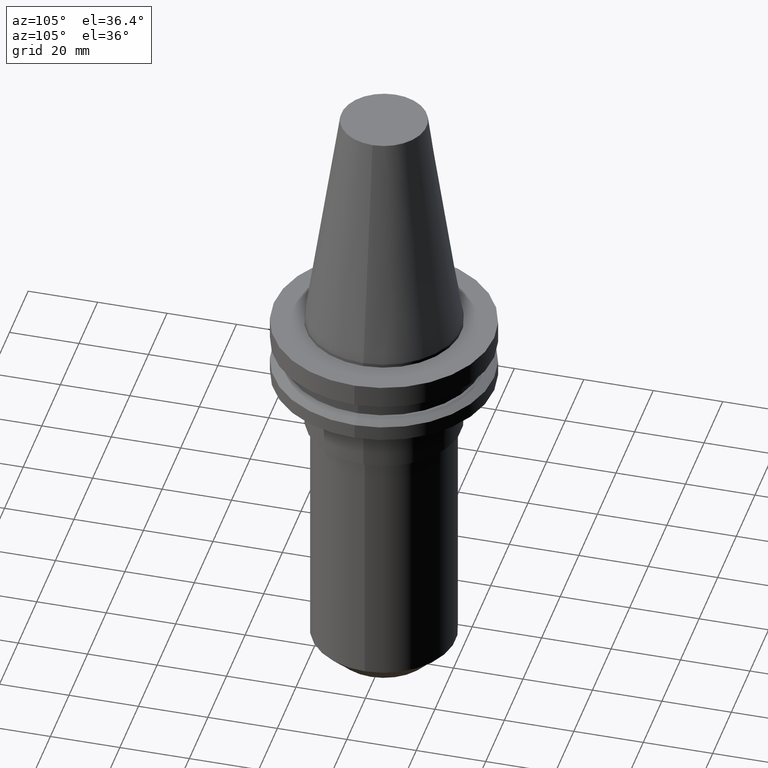
[diagram: clean part render]
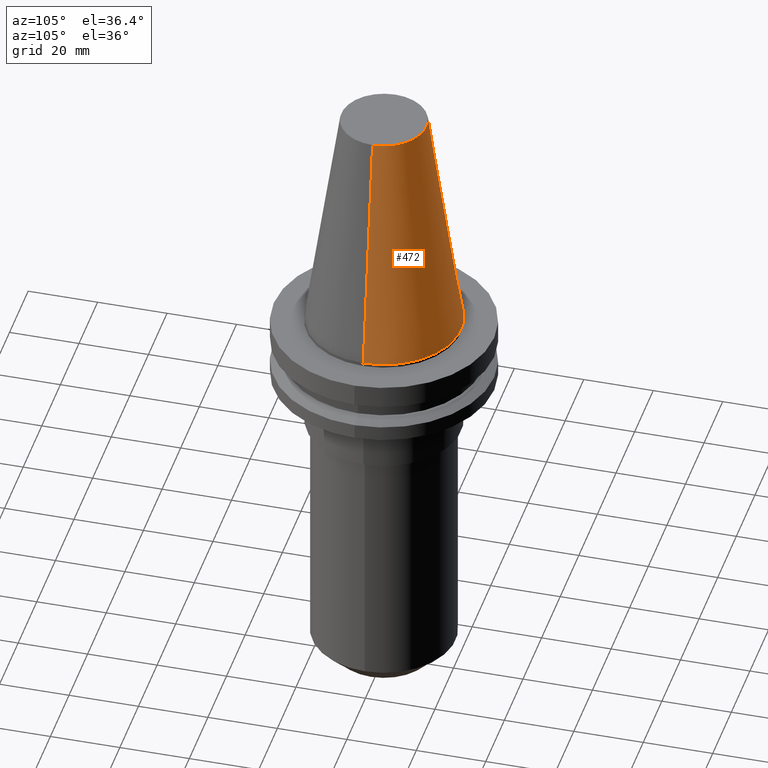
[diagram: same view with one face highlighted and labeled with its STEP entity id]
A machine part, auxiliary view. The second image highlights one B-rep face of the part: STEP entity #472.
In plain terms, the highlighted conical surface has half-angle 8.297 deg.
Its self-contained STEP definition (entity closure, byte-faithful):
#9 = CIRCLE ( 'NONE', #568, 12.27178102086201150 ) ;
#12 = VECTOR ( 'NONE', #33, 999.9999999999998863 ) ;
#33 = DIRECTION ( 'NONE',  ( 0.1443082272672999711, 1.767266086135276757E-17, -0.9895327864921755756 ) ) ;
#34 = VERTEX_POINT ( 'NONE', #451 ) ;
#49 = EDGE_CURVE ( 'NONE', #409, #300, #597, .T. ) ;
#52 = DIRECTION ( 'NONE',  ( -0.1443082272672999711, 0.000000000000000000, -0.9895327864921755756 ) ) ;
#53 = CARTESIAN_POINT ( 'NONE',  ( -12.27178102086201150, 0.000000000000000000, 68.25000000000000000 ) ) ;
#77 = VECTOR ( 'NONE', #52, 999.9999999999998863 ) ;
#79 = DIRECTION ( 'NONE',  ( -0.000000000000000000, -0.000000000000000000, 1.000000000000000000 ) ) ;
#109 = ORIENTED_EDGE ( 'NONE', *, *, #178, .T. ) ;
#134 = CARTESIAN_POINT ( 'NONE',  ( 22.22500000000000142, 2.721777511104992849E-15, 0.000000000000000000 ) ) ;
#135 = DIRECTION ( 'NONE',  ( 0.000000000000000000, 0.000000000000000000, -1.000000000000000000 ) ) ;
#139 = CIRCLE ( 'NONE', #368, 22.22500000000000142 ) ;
#151 = ORIENTED_EDGE ( 'NONE', *, *, #480, .F. ) ;
#159 = ORIENTED_EDGE ( 'NONE', *, *, #49, .F. ) ;
#169 = VERTEX_POINT ( 'NONE', #134 ) ;
#178 = EDGE_CURVE ( 'NONE', #169, #300, #139, .T. ) ;
#210 = DIRECTION ( 'NONE',  ( 1.000000000000000000, 0.000000000000000000, 0.000000000000000000 ) ) ;
#268 = DIRECTION ( 'NONE',  ( -1.000000000000000000, 0.000000000000000000, 0.000000000000000000 ) ) ;
#300 = VERTEX_POINT ( 'NONE', #627 ) ;
#312 = DIRECTION ( 'NONE',  ( 1.000000000000000000, 0.000000000000000000, 0.000000000000000000 ) ) ;
#335 = FACE_OUTER_BOUND ( 'NONE', #831, .T. ) ;
#368 = AXIS2_PLACEMENT_3D ( 'NONE', #703, #440, #312 ) ;
#409 = VERTEX_POINT ( 'NONE', #53 ) ;
#429 = CARTESIAN_POINT ( 'NONE',  ( 22.22500000000000142, 2.721777511104992849E-15, 0.000000000000000000 ) ) ;
#440 = DIRECTION ( 'NONE',  ( -0.000000000000000000, -0.000000000000000000, 1.000000000000000000 ) ) ;
#451 = CARTESIAN_POINT ( 'NONE',  ( 12.27178102086201150, 2.112318622904291439E-15, 68.25000000000000000 ) ) ;
#472 = ADVANCED_FACE ( 'NONE', ( #335 ), #540, .T. ) ;
#480 = EDGE_CURVE ( 'NONE', #34, #409, #9, .T. ) ;
#485 = AXIS2_PLACEMENT_3D ( 'NONE', #792, #135, #268 ) ;
#528 = CARTESIAN_POINT ( 'NONE',  ( 0.000000000000000000, 0.000000000000000000, 68.25000000000000000 ) ) ;
#540 = CONICAL_SURFACE ( 'NONE', #485, 22.22500000000000142, 0.1448138465474119174 ) ;
#568 = AXIS2_PLACEMENT_3D ( 'NONE', #528, #79, #210 ) ;
#597 = LINE ( 'NONE', #647, #77 ) ;
#627 = CARTESIAN_POINT ( 'NONE',  ( -22.22500000000000142, 0.000000000000000000, 0.000000000000000000 ) ) ;
#647 = CARTESIAN_POINT ( 'NONE',  ( -22.22500000000000142, 0.000000000000000000, 0.000000000000000000 ) ) ;
#690 = EDGE_CURVE ( 'NONE', #34, #169, #755, .T. ) ;
#703 = CARTESIAN_POINT ( 'NONE',  ( 0.000000000000000000, 0.000000000000000000, 0.000000000000000000 ) ) ;
#755 = LINE ( 'NONE', #429, #12 ) ;
#756 = ORIENTED_EDGE ( 'NONE', *, *, #690, .T. ) ;
#792 = CARTESIAN_POINT ( 'NONE',  ( 0.000000000000000000, 0.000000000000000000, 0.000000000000000000 ) ) ;
#831 = EDGE_LOOP ( 'NONE', ( #151, #756, #109, #159 ) ) ;